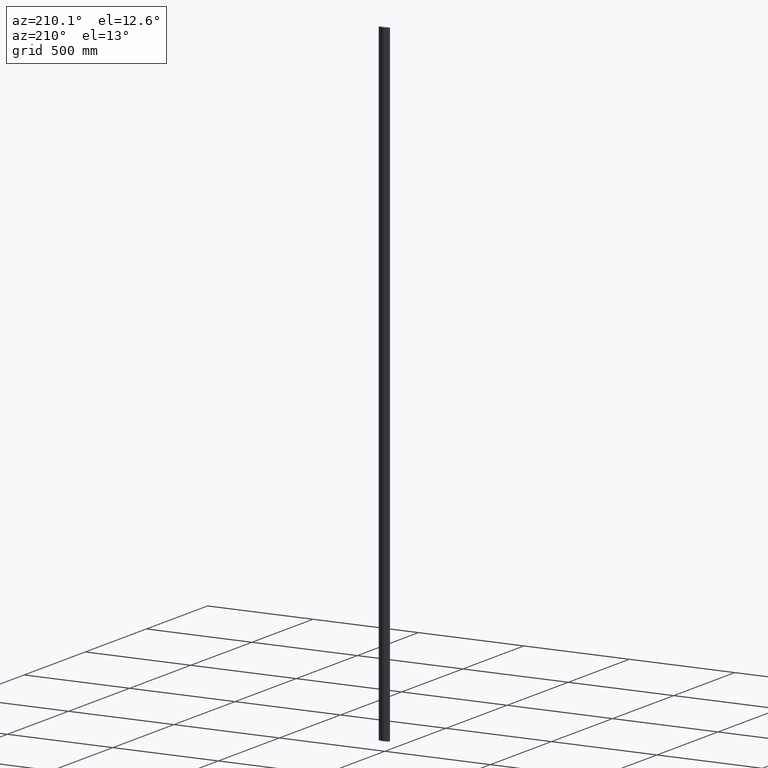
[diagram: clean part render]
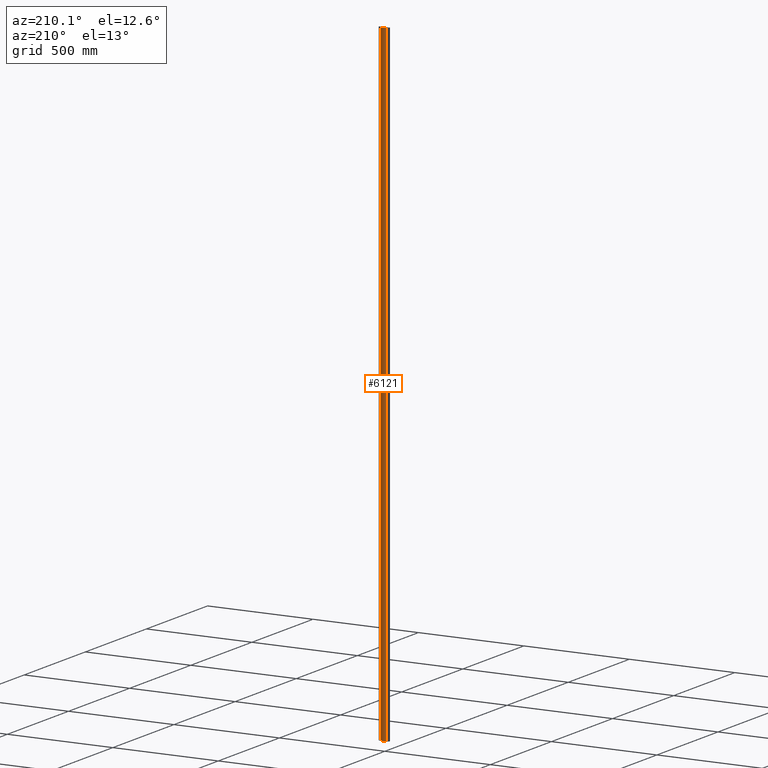
[diagram: same view with one face highlighted and labeled with its STEP entity id]
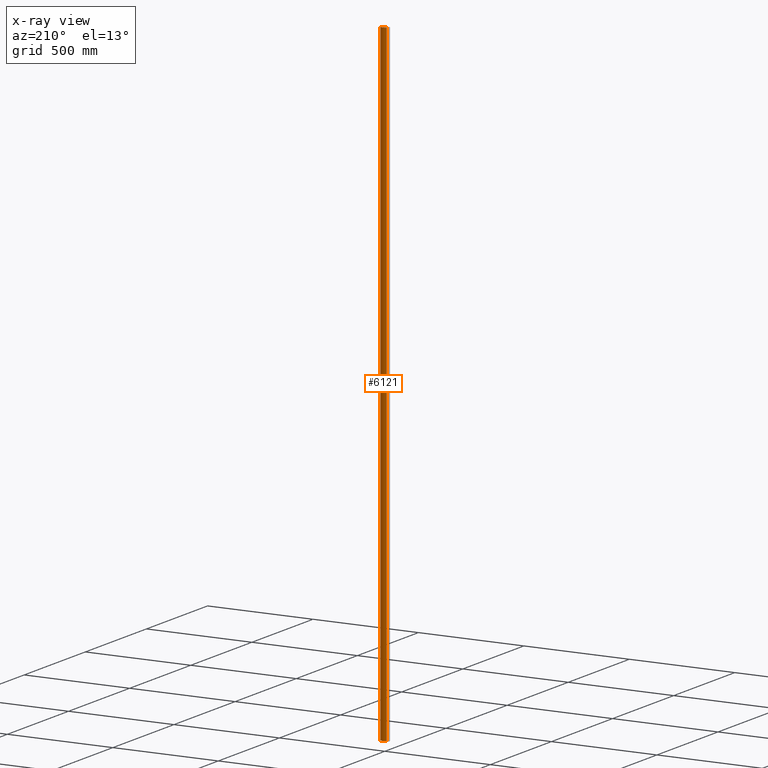
[diagram: x-ray of the same camera — body ghosted, the highlighted face saturated]
A machine part, auxiliary view. The second image highlights one B-rep face of the part: STEP entity #6121.
The next image is the same camera in x-ray: the body ghosted, the highlighted face saturated — about 0% of this face is hidden behind the body in this view.
In plain terms, the highlighted cylindrical surface (edge-blend (fillet) strip) has radius 29.75 mm, axis along (0, 0, 1).
Its self-contained STEP definition (entity closure, byte-faithful):
#881 = VERTEX_POINT ( 'NONE', #8008 ) ;
#1881 = LINE ( 'NONE', #9754, #9314 ) ;
#1985 = CARTESIAN_POINT ( 'NONE',  ( 0.000000000000000000, -15.74999999999998579, 1500.000000000000000 ) ) ;
#2460 = AXIS2_PLACEMENT_3D ( 'NONE', #4994, #5062, #10821 ) ;
#2513 = FACE_OUTER_BOUND ( 'NONE', #10121, .T. ) ;
#2899 = CYLINDRICAL_SURFACE ( 'NONE', #6114, 29.74999999999998579 ) ;
#3411 = ORIENTED_EDGE ( 'NONE', *, *, #4671, .F. ) ;
#3517 = ORIENTED_EDGE ( 'NONE', *, *, #4043, .T. ) ;
#3875 = DIRECTION ( 'NONE',  ( 0.000000000000000000, 0.000000000000000000, 1.000000000000000000 ) ) ;
#3941 = VERTEX_POINT ( 'NONE', #4555 ) ;
#3992 = CARTESIAN_POINT ( 'NONE',  ( -14.00000000000000355, 10.49999999999999112, -1500.000000000000000 ) ) ;
#4043 = EDGE_CURVE ( 'NONE', #881, #7384, #8033, .T. ) ;
#4555 = CARTESIAN_POINT ( 'NONE',  ( 14.00000000000000533, 10.49999999999999645, 1500.000000000000000 ) ) ;
#4671 = EDGE_CURVE ( 'NONE', #3941, #10343, #9324, .T. ) ;
#4932 = DIRECTION ( 'NONE',  ( 0.000000000000000000, 0.000000000000000000, 1.000000000000000000 ) ) ;
#4994 = CARTESIAN_POINT ( 'NONE',  ( 0.000000000000000000, -15.74999999999998579, -1500.000000000000000 ) ) ;
#5062 = DIRECTION ( 'NONE',  ( 0.000000000000000000, 0.000000000000000000, 1.000000000000000000 ) ) ;
#5380 = EDGE_CURVE ( 'NONE', #7384, #10343, #1881, .T. ) ;
#5559 = EDGE_CURVE ( 'NONE', #881, #3941, #9573, .T. ) ;
#5665 = CARTESIAN_POINT ( 'NONE',  ( -14.00000000000000355, 10.49999999999999112, 1500.000000000000000 ) ) ;
#5666 = DIRECTION ( 'NONE',  ( 1.000000000000000000, 0.000000000000000000, 0.000000000000000000 ) ) ;
#5738 = CARTESIAN_POINT ( 'NONE',  ( 0.000000000000000000, -15.74999999999998579, -1500.000000000000000 ) ) ;
#6114 = AXIS2_PLACEMENT_3D ( 'NONE', #5738, #4932, #5666 ) ;
#6121 = ADVANCED_FACE ( 'NONE', ( #2513 ), #2899, .T. ) ;
#6129 = ORIENTED_EDGE ( 'NONE', *, *, #5559, .F. ) ;
#6216 = DIRECTION ( 'NONE',  ( 0.000000000000000000, 0.000000000000000000, 1.000000000000000000 ) ) ;
#6562 = CARTESIAN_POINT ( 'NONE',  ( 14.00000000000000533, 10.49999999999999645, -1500.000000000000000 ) ) ;
#7367 = AXIS2_PLACEMENT_3D ( 'NONE', #1985, #6216, #9596 ) ;
#7384 = VERTEX_POINT ( 'NONE', #3992 ) ;
#8008 = CARTESIAN_POINT ( 'NONE',  ( 14.00000000000000533, 10.49999999999999645, -1500.000000000000000 ) ) ;
#8033 = CIRCLE ( 'NONE', #2460, 29.74999999999998579 ) ;
#8150 = VECTOR ( 'NONE', #10840, 1000.000000000000000 ) ;
#8284 = ORIENTED_EDGE ( 'NONE', *, *, #5380, .T. ) ;
#9314 = VECTOR ( 'NONE', #3875, 1000.000000000000000 ) ;
#9324 = CIRCLE ( 'NONE', #7367, 29.74999999999998579 ) ;
#9573 = LINE ( 'NONE', #6562, #8150 ) ;
#9596 = DIRECTION ( 'NONE',  ( -1.000000000000000000, 0.000000000000000000, 0.000000000000000000 ) ) ;
#9754 = CARTESIAN_POINT ( 'NONE',  ( -14.00000000000000355, 10.49999999999999112, -1500.000000000000000 ) ) ;
#10121 = EDGE_LOOP ( 'NONE', ( #3411, #6129, #3517, #8284 ) ) ;
#10343 = VERTEX_POINT ( 'NONE', #5665 ) ;
#10821 = DIRECTION ( 'NONE',  ( -1.000000000000000000, 0.000000000000000000, 0.000000000000000000 ) ) ;
#10840 = DIRECTION ( 'NONE',  ( 0.000000000000000000, 0.000000000000000000, 1.000000000000000000 ) ) ;